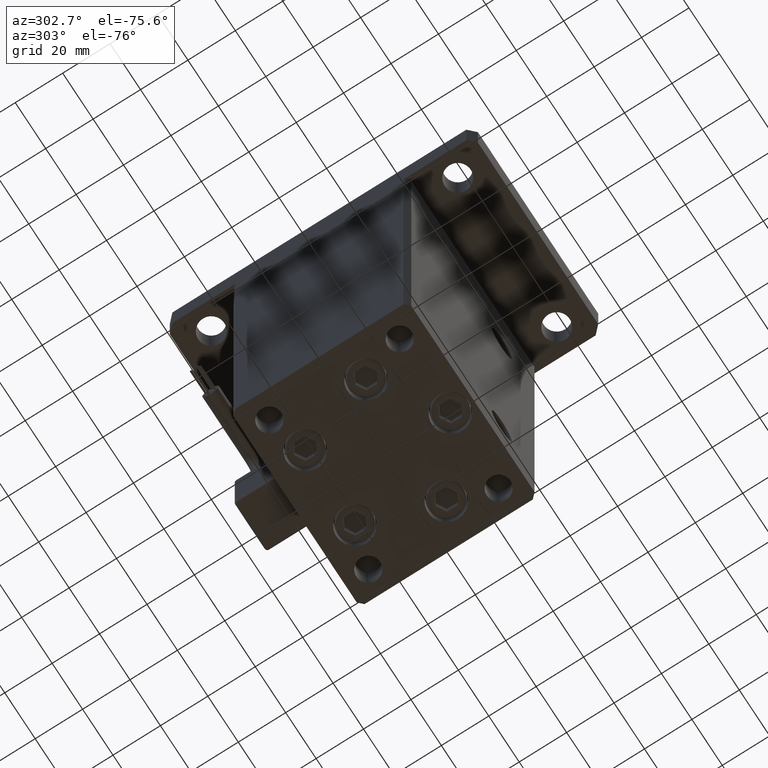
[diagram: clean part render]
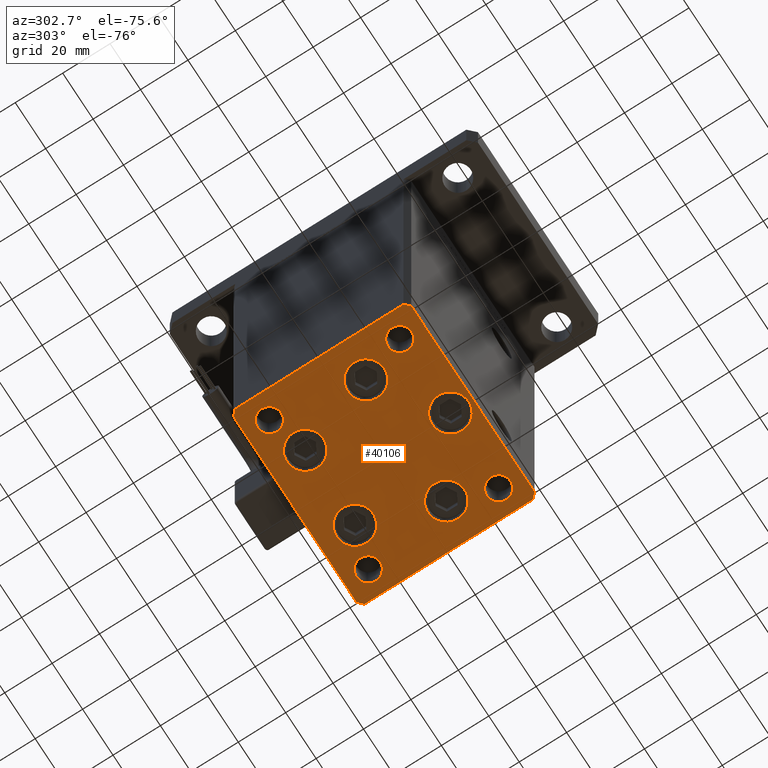
[diagram: same view with one face highlighted and labeled with its STEP entity id]
A machine part, auxiliary view. The second image highlights one B-rep face of the part: STEP entity #40106.
In plain terms, the highlighted planar face has unit normal (0, 0, -1).
Its self-contained STEP definition (entity closure, byte-faithful):
#190 = CARTESIAN_POINT ( 'NONE',  ( -42.50000000000000000, -35.50000000000000711, 0.000000000000000000 ) ) ;
#523 = VERTEX_POINT ( 'NONE', #755 ) ;
#556 = CARTESIAN_POINT ( 'NONE',  ( 3.429011037612589276E-15, -28.00000000000000000, 0.000000000000000000 ) ) ;
#755 = CARTESIAN_POINT ( 'NONE',  ( -37.50000000000000711, -27.49999999999999645, 0.000000000000000000 ) ) ;
#1051 = AXIS2_PLACEMENT_3D ( 'NONE', #21051, #55551, #38402 ) ;
#1244 = AXIS2_PLACEMENT_3D ( 'NONE', #31341, #44461, #27627 ) ;
#1303 = ORIENTED_EDGE ( 'NONE', *, *, #6437, .T. ) ;
#1730 = ORIENTED_EDGE ( 'NONE', *, *, #2276, .T. ) ;
#1922 = EDGE_CURVE ( 'NONE', #32079, #53146, #19360, .T. ) ;
#2072 = VERTEX_POINT ( 'NONE', #54143 ) ;
#2276 = EDGE_CURVE ( 'NONE', #34103, #2072, #3885, .T. ) ;
#2718 = CARTESIAN_POINT ( 'NONE',  ( -16.32291334290543006, 22.74999999999999645, 0.000000000000000000 ) ) ;
#2997 = DIRECTION ( 'NONE',  ( -0.000000000000000000, 0.000000000000000000, 1.000000000000000000 ) ) ;
#3047 = CARTESIAN_POINT ( 'NONE',  ( 32.50000000000000000, -27.49999999999999645, 0.000000000000000000 ) ) ;
#3281 = FACE_BOUND ( 'NONE', #40045, .T. ) ;
#3399 = DIRECTION ( 'NONE',  ( 0.000000000000000000, -0.000000000000000000, -1.000000000000000000 ) ) ;
#3885 = CIRCLE ( 'NONE', #46665, 7.750000000000000000 ) ;
#3964 = VECTOR ( 'NONE', #56253, 1000.000000000000000 ) ;
#4137 = DIRECTION ( 'NONE',  ( 1.000000000000000000, 0.000000000000000000, 0.000000000000000000 ) ) ;
#4348 = CIRCLE ( 'NONE', #32550, 4.999999999999997335 ) ;
#4424 = CARTESIAN_POINT ( 'NONE',  ( 26.39865316429776954, -9.333333333333330373, 0.000000000000000000 ) ) ;
#4483 = VERTEX_POINT ( 'NONE', #34559 ) ;
#4522 = DIRECTION ( 'NONE',  ( 1.000000000000000000, 0.000000000000000000, 0.000000000000000000 ) ) ;
#4916 = AXIS2_PLACEMENT_3D ( 'NONE', #55445, #6701, #7268 ) ;
#5504 = CIRCLE ( 'NONE', #46488, 4.999999999999997335 ) ;
#5640 = DIRECTION ( 'NONE',  ( 0.000000000000000000, -0.000000000000000000, -1.000000000000000000 ) ) ;
#5955 = DIRECTION ( 'NONE',  ( 0.7071067811865474617, 0.7071067811865474617, 0.000000000000000000 ) ) ;
#6284 = CARTESIAN_POINT ( 'NONE',  ( -40.50000000000000711, 37.49999999999997868, 0.000000000000000000 ) ) ;
#6437 = EDGE_CURVE ( 'NONE', #51721, #19822, #45192, .T. ) ;
#6701 = DIRECTION ( 'NONE',  ( 0.000000000000000000, -0.000000000000000000, -1.000000000000000000 ) ) ;
#6921 = AXIS2_PLACEMENT_3D ( 'NONE', #16507, #3399, #51286 ) ;
#7113 = ORIENTED_EDGE ( 'NONE', *, *, #47487, .T. ) ;
#7268 = DIRECTION ( 'NONE',  ( 1.000000000000000000, 0.000000000000000000, 0.000000000000000000 ) ) ;
#7584 = CARTESIAN_POINT ( 'NONE',  ( 37.50000000000000000, 27.49999999999999645, 0.000000000000000000 ) ) ;
#7600 = CARTESIAN_POINT ( 'NONE',  ( 32.50000000000000000, -27.49999999999999645, 0.000000000000000000 ) ) ;
#7665 = CARTESIAN_POINT ( 'NONE',  ( -32.50000000000000000, 27.50000000000000355, 0.000000000000000000 ) ) ;
#7943 = DIRECTION ( 'NONE',  ( 1.000000000000000000, 0.000000000000000000, 0.000000000000000000 ) ) ;
#7961 = CARTESIAN_POINT ( 'NONE',  ( 42.49999999999992895, 35.50000000000000000, 0.000000000000000000 ) ) ;
#8569 = EDGE_CURVE ( 'NONE', #54221, #39507, #37641, .T. ) ;
#9166 = EDGE_CURVE ( 'NONE', #47627, #22490, #43690, .T. ) ;
#9227 = CIRCLE ( 'NONE', #12845, 5.000000000000000888 ) ;
#9655 = ORIENTED_EDGE ( 'NONE', *, *, #50332, .T. ) ;
#9757 = EDGE_CURVE ( 'NONE', #41611, #523, #34063, .T. ) ;
#9963 = EDGE_CURVE ( 'NONE', #29489, #22587, #45894, .T. ) ;
#10400 = VECTOR ( 'NONE', #28366, 1000.000000000000000 ) ;
#10504 = DIRECTION ( 'NONE',  ( -1.172770800660376741E-15, 1.000000000000000000, 0.000000000000000000 ) ) ;
#10688 = ORIENTED_EDGE ( 'NONE', *, *, #33497, .F. ) ;
#11514 = ORIENTED_EDGE ( 'NONE', *, *, #32123, .T. ) ;
#12387 = FACE_BOUND ( 'NONE', #29664, .T. ) ;
#12444 = DIRECTION ( 'NONE',  ( 0.000000000000000000, -0.000000000000000000, -1.000000000000000000 ) ) ;
#12845 = AXIS2_PLACEMENT_3D ( 'NONE', #7665, #42985, #7943 ) ;
#13663 = ORIENTED_EDGE ( 'NONE', *, *, #44723, .T. ) ;
#13898 = EDGE_CURVE ( 'NONE', #4483, #36853, #16903, .T. ) ;
#13907 = CARTESIAN_POINT ( 'NONE',  ( 3.429011037612589276E-15, -28.00000000000000000, 0.000000000000000000 ) ) ;
#14202 = CIRCLE ( 'NONE', #6921, 7.750000000000003553 ) ;
#14213 = CARTESIAN_POINT ( 'NONE',  ( 26.39865316429776954, -9.333333333333330373, 0.000000000000000000 ) ) ;
#14427 = DIRECTION ( 'NONE',  ( -0.000000000000000000, 0.000000000000000000, 1.000000000000000000 ) ) ;
#14441 = CARTESIAN_POINT ( 'NONE',  ( -40.49999999999999289, -37.50000000000002132, 0.000000000000000000 ) ) ;
#14813 = CARTESIAN_POINT ( 'NONE',  ( 27.50000000000000355, 27.49999999999999645, 0.000000000000000000 ) ) ;
#15300 = DIRECTION ( 'NONE',  ( 1.000000000000000000, 0.000000000000000000, 0.000000000000000000 ) ) ;
#15473 = ORIENTED_EDGE ( 'NONE', *, *, #39562, .T. ) ;
#15632 = CIRCLE ( 'NONE', #1051, 7.750000000000000000 ) ;
#15964 = EDGE_LOOP ( 'NONE', ( #22837, #23187 ) ) ;
#15975 = ORIENTED_EDGE ( 'NONE', *, *, #37500, .T. ) ;
#16325 = CARTESIAN_POINT ( 'NONE',  ( 8.572913342905422951, 22.75000000000000000, 0.000000000000000000 ) ) ;
#16507 = CARTESIAN_POINT ( 'NONE',  ( 16.32291334290542295, 22.75000000000000000, 0.000000000000000000 ) ) ;
#16903 = CIRCLE ( 'NONE', #46060, 7.750000000000000000 ) ;
#17532 = AXIS2_PLACEMENT_3D ( 'NONE', #38431, #5640, #4522 ) ;
#17592 = VERTEX_POINT ( 'NONE', #52356 ) ;
#18235 = DIRECTION ( 'NONE',  ( 0.000000000000000000, -0.000000000000000000, -1.000000000000000000 ) ) ;
#19360 = CIRCLE ( 'NONE', #42980, 7.750000000000000000 ) ;
#19501 = AXIS2_PLACEMENT_3D ( 'NONE', #2718, #37468, #41464 ) ;
#19822 = VERTEX_POINT ( 'NONE', #45044 ) ;
#20116 = FACE_BOUND ( 'NONE', #45277, .T. ) ;
#20147 = DIRECTION ( 'NONE',  ( -0.000000000000000000, 0.000000000000000000, 1.000000000000000000 ) ) ;
#20162 = DIRECTION ( 'NONE',  ( 0.000000000000000000, -0.000000000000000000, -1.000000000000000000 ) ) ;
#20401 = CIRCLE ( 'NONE', #19501, 7.750000000000000000 ) ;
#20444 = DIRECTION ( 'NONE',  ( 1.000000000000000000, 0.000000000000000000, 0.000000000000000000 ) ) ;
#20849 = DIRECTION ( 'NONE',  ( 9.773090005503140331E-17, -1.000000000000000000, 0.000000000000000000 ) ) ;
#21051 = CARTESIAN_POINT ( 'NONE',  ( -26.39865316429776954, -9.333333333333337478, 0.000000000000000000 ) ) ;
#21119 = CARTESIAN_POINT ( 'NONE',  ( -42.50000000000000711, 35.49999999999997158, 0.000000000000000000 ) ) ;
#21293 = CIRCLE ( 'NONE', #24913, 7.750000000000000000 ) ;
#21345 = DIRECTION ( 'NONE',  ( 0.000000000000000000, -0.000000000000000000, -1.000000000000000000 ) ) ;
#21557 = CARTESIAN_POINT ( 'NONE',  ( -40.49999999999999289, -37.50000000000002132, 0.000000000000000000 ) ) ;
#21968 = AXIS2_PLACEMENT_3D ( 'NONE', #46024, #41737, #50301 ) ;
#22490 = VERTEX_POINT ( 'NONE', #21557 ) ;
#22587 = VERTEX_POINT ( 'NONE', #54528 ) ;
#22772 = DIRECTION ( 'NONE',  ( 0.000000000000000000, -0.000000000000000000, -1.000000000000000000 ) ) ;
#22837 = ORIENTED_EDGE ( 'NONE', *, *, #44695, .T. ) ;
#23073 = CARTESIAN_POINT ( 'NONE',  ( 40.50000000000000000, -37.50000000000000711, 0.000000000000000000 ) ) ;
#23115 = LINE ( 'NONE', #6284, #35363 ) ;
#23187 = ORIENTED_EDGE ( 'NONE', *, *, #35145, .T. ) ;
#23322 = EDGE_LOOP ( 'NONE', ( #52766, #34047 ) ) ;
#23674 = DIRECTION ( 'NONE',  ( -0.7071067811865463515, -0.7071067811865487940, 0.000000000000000000 ) ) ;
#24135 = CARTESIAN_POINT ( 'NONE',  ( -16.32291334290543006, 22.74999999999999645, 0.000000000000000000 ) ) ;
#24402 = VERTEX_POINT ( 'NONE', #16325 ) ;
#24907 = CIRCLE ( 'NONE', #46885, 4.999999999999997335 ) ;
#24913 = AXIS2_PLACEMENT_3D ( 'NONE', #14213, #22772, #35022 ) ;
#25417 = EDGE_LOOP ( 'NONE', ( #31723, #15473, #11514, #7113, #9655, #1303, #29556, #40360 ) ) ;
#25611 = CARTESIAN_POINT ( 'NONE',  ( 40.49999999999991473, 37.50000000000000711, 0.000000000000000000 ) ) ;
#25616 = ORIENTED_EDGE ( 'NONE', *, *, #29426, .T. ) ;
#25730 = CARTESIAN_POINT ( 'NONE',  ( -42.50000000000000000, -35.50000000000000711, 0.000000000000000000 ) ) ;
#25870 = EDGE_CURVE ( 'NONE', #19822, #42367, #23115, .T. ) ;
#26797 = AXIS2_PLACEMENT_3D ( 'NONE', #7600, #12444, #29000 ) ;
#26970 = CARTESIAN_POINT ( 'NONE',  ( 32.50000000000000000, 27.49999999999999645, 0.000000000000000000 ) ) ;
#27024 = DIRECTION ( 'NONE',  ( 1.000000000000000000, 0.000000000000000000, 0.000000000000000000 ) ) ;
#27627 = DIRECTION ( 'NONE',  ( 1.000000000000000000, 0.000000000000000000, 0.000000000000000000 ) ) ;
#28366 = DIRECTION ( 'NONE',  ( -1.000000000000000000, -3.426614273534436165E-16, 0.000000000000000000 ) ) ;
#28516 = EDGE_LOOP ( 'NONE', ( #49891, #39128 ) ) ;
#28882 = CARTESIAN_POINT ( 'NONE',  ( -34.14865316429776954, -9.333333333333337478, 0.000000000000000000 ) ) ;
#29000 = DIRECTION ( 'NONE',  ( 1.000000000000000000, 0.000000000000000000, 0.000000000000000000 ) ) ;
#29147 = VERTEX_POINT ( 'NONE', #7584 ) ;
#29426 = EDGE_CURVE ( 'NONE', #24402, #29653, #47435, .T. ) ;
#29489 = VERTEX_POINT ( 'NONE', #38559 ) ;
#29556 = ORIENTED_EDGE ( 'NONE', *, *, #25870, .T. ) ;
#29583 = VECTOR ( 'NONE', #10504, 1000.000000000000000 ) ;
#29653 = VERTEX_POINT ( 'NONE', #45319 ) ;
#29664 = EDGE_LOOP ( 'NONE', ( #37434, #48589 ) ) ;
#29719 = EDGE_CURVE ( 'NONE', #39507, #54221, #9227, .T. ) ;
#30635 = DIRECTION ( 'NONE',  ( 0.000000000000000000, -0.000000000000000000, -1.000000000000000000 ) ) ;
#30865 = CARTESIAN_POINT ( 'NONE',  ( 34.14865316429776954, -9.333333333333328596, 0.000000000000000000 ) ) ;
#31341 = CARTESIAN_POINT ( 'NONE',  ( -32.50000000000000000, 27.50000000000000355, 0.000000000000000000 ) ) ;
#31406 = CARTESIAN_POINT ( 'NONE',  ( -42.50000000000000711, 35.49999999999997158, 0.000000000000000000 ) ) ;
#31534 = CARTESIAN_POINT ( 'NONE',  ( -27.50000000000000000, 27.50000000000000355, 0.000000000000000000 ) ) ;
#31723 = ORIENTED_EDGE ( 'NONE', *, *, #9166, .T. ) ;
#32079 = VERTEX_POINT ( 'NONE', #56164 ) ;
#32105 = CARTESIAN_POINT ( 'NONE',  ( -18.64865316429776954, -9.333333333333335702, 0.000000000000000000 ) ) ;
#32123 = EDGE_CURVE ( 'NONE', #48269, #17592, #53577, .T. ) ;
#32250 = CARTESIAN_POINT ( 'NONE',  ( -27.50000000000000000, -27.49999999999999645, 0.000000000000000000 ) ) ;
#32550 = AXIS2_PLACEMENT_3D ( 'NONE', #26970, #14427, #44632 ) ;
#32937 = PLANE ( 'NONE',  #42150 ) ;
#33497 = EDGE_CURVE ( 'NONE', #29147, #35859, #5504, .T. ) ;
#33759 = FACE_BOUND ( 'NONE', #15964, .T. ) ;
#34035 = FACE_BOUND ( 'NONE', #52215, .T. ) ;
#34047 = ORIENTED_EDGE ( 'NONE', *, *, #8569, .F. ) ;
#34063 = CIRCLE ( 'NONE', #54115, 5.000000000000000888 ) ;
#34103 = VERTEX_POINT ( 'NONE', #51074 ) ;
#34164 = VECTOR ( 'NONE', #20849, 1000.000000000000000 ) ;
#34559 = CARTESIAN_POINT ( 'NONE',  ( 18.64865316429776954, -9.333333333333330373, 0.000000000000000000 ) ) ;
#35022 = DIRECTION ( 'NONE',  ( 1.000000000000000000, 0.000000000000000000, 0.000000000000000000 ) ) ;
#35145 = EDGE_CURVE ( 'NONE', #47719, #41369, #15632, .T. ) ;
#35363 = VECTOR ( 'NONE', #23674, 1000.000000000000000 ) ;
#35859 = VERTEX_POINT ( 'NONE', #14813 ) ;
#36853 = VERTEX_POINT ( 'NONE', #30865 ) ;
#37196 = CARTESIAN_POINT ( 'NONE',  ( 0.000000000000000000, 0.000000000000000000, 0.000000000000000000 ) ) ;
#37434 = ORIENTED_EDGE ( 'NONE', *, *, #43592, .T. ) ;
#37468 = DIRECTION ( 'NONE',  ( 0.000000000000000000, -0.000000000000000000, -1.000000000000000000 ) ) ;
#37500 = EDGE_CURVE ( 'NONE', #53146, #32079, #42998, .T. ) ;
#37641 = CIRCLE ( 'NONE', #1244, 5.000000000000000888 ) ;
#38327 = EDGE_CURVE ( 'NONE', #523, #41611, #39371, .T. ) ;
#38402 = DIRECTION ( 'NONE',  ( 1.000000000000000000, 0.000000000000000000, 0.000000000000000000 ) ) ;
#38431 = CARTESIAN_POINT ( 'NONE',  ( -32.50000000000000000, -27.49999999999999645, 0.000000000000000000 ) ) ;
#38559 = CARTESIAN_POINT ( 'NONE',  ( 27.50000000000000355, -27.49999999999999645, 0.000000000000000000 ) ) ;
#38960 = ORIENTED_EDGE ( 'NONE', *, *, #54795, .F. ) ;
#39053 = EDGE_LOOP ( 'NONE', ( #13663, #1730 ) ) ;
#39128 = ORIENTED_EDGE ( 'NONE', *, *, #40536, .T. ) ;
#39371 = CIRCLE ( 'NONE', #17532, 5.000000000000000888 ) ;
#39507 = VERTEX_POINT ( 'NONE', #31534 ) ;
#39562 = EDGE_CURVE ( 'NONE', #22490, #48269, #53491, .T. ) ;
#39840 = DIRECTION ( 'NONE',  ( 0.000000000000000000, -0.000000000000000000, -1.000000000000000000 ) ) ;
#40045 = EDGE_LOOP ( 'NONE', ( #25616, #47314 ) ) ;
#40106 = ADVANCED_FACE ( 'NONE', ( #46887, #3281, #41763, #42037, #33759, #34035, #12387, #42322, #50620, #20116 ), #32937, .T. ) ;
#40360 = ORIENTED_EDGE ( 'NONE', *, *, #49103, .T. ) ;
#40536 = EDGE_CURVE ( 'NONE', #36853, #4483, #21293, .T. ) ;
#40830 = EDGE_LOOP ( 'NONE', ( #15975, #54248 ) ) ;
#40980 = LINE ( 'NONE', #49560, #29583 ) ;
#41196 = ORIENTED_EDGE ( 'NONE', *, *, #9757, .T. ) ;
#41369 = VERTEX_POINT ( 'NONE', #28882 ) ;
#41464 = DIRECTION ( 'NONE',  ( 1.000000000000000000, 0.000000000000000000, 0.000000000000000000 ) ) ;
#41611 = VERTEX_POINT ( 'NONE', #32250 ) ;
#41737 = DIRECTION ( 'NONE',  ( 0.000000000000000000, -0.000000000000000000, -1.000000000000000000 ) ) ;
#41763 = FACE_BOUND ( 'NONE', #28516, .T. ) ;
#42037 = FACE_BOUND ( 'NONE', #40830, .T. ) ;
#42150 = AXIS2_PLACEMENT_3D ( 'NONE', #37196, #2997, #51449 ) ;
#42322 = FACE_BOUND ( 'NONE', #23322, .T. ) ;
#42367 = VERTEX_POINT ( 'NONE', #31406 ) ;
#42980 = AXIS2_PLACEMENT_3D ( 'NONE', #556, #18235, #43606 ) ;
#42985 = DIRECTION ( 'NONE',  ( -0.000000000000000000, 0.000000000000000000, 1.000000000000000000 ) ) ;
#42998 = CIRCLE ( 'NONE', #45743, 7.750000000000000000 ) ;
#43275 = DIRECTION ( 'NONE',  ( -0.7071067811865474617, 0.7071067811865474617, 0.000000000000000000 ) ) ;
#43552 = DIRECTION ( 'NONE',  ( 1.000000000000000000, 0.000000000000000000, 0.000000000000000000 ) ) ;
#43592 = EDGE_CURVE ( 'NONE', #22587, #29489, #24907, .T. ) ;
#43606 = DIRECTION ( 'NONE',  ( 1.000000000000000000, 0.000000000000000000, 0.000000000000000000 ) ) ;
#43690 = LINE ( 'NONE', #25730, #3964 ) ;
#44072 = CIRCLE ( 'NONE', #4916, 7.750000000000000000 ) ;
#44137 = LINE ( 'NONE', #48129, #46075 ) ;
#44461 = DIRECTION ( 'NONE',  ( -0.000000000000000000, 0.000000000000000000, 1.000000000000000000 ) ) ;
#44632 = DIRECTION ( 'NONE',  ( 1.000000000000000000, 0.000000000000000000, 0.000000000000000000 ) ) ;
#44666 = DIRECTION ( 'NONE',  ( 0.000000000000000000, -0.000000000000000000, -1.000000000000000000 ) ) ;
#44695 = EDGE_CURVE ( 'NONE', #41369, #47719, #44072, .T. ) ;
#44723 = EDGE_CURVE ( 'NONE', #2072, #34103, #20401, .T. ) ;
#45044 = CARTESIAN_POINT ( 'NONE',  ( -40.50000000000000711, 37.49999999999997868, 0.000000000000000000 ) ) ;
#45192 = LINE ( 'NONE', #45752, #10400 ) ;
#45277 = EDGE_LOOP ( 'NONE', ( #41196, #48566 ) ) ;
#45319 = CARTESIAN_POINT ( 'NONE',  ( 24.07291334290542650, 22.75000000000000000, 0.000000000000000000 ) ) ;
#45743 = AXIS2_PLACEMENT_3D ( 'NONE', #13907, #39840, #27024 ) ;
#45752 = CARTESIAN_POINT ( 'NONE',  ( 40.49999999999991473, 37.50000000000000711, 0.000000000000000000 ) ) ;
#45894 = CIRCLE ( 'NONE', #26797, 4.999999999999997335 ) ;
#46024 = CARTESIAN_POINT ( 'NONE',  ( 16.32291334290542295, 22.75000000000000000, 0.000000000000000000 ) ) ;
#46060 = AXIS2_PLACEMENT_3D ( 'NONE', #4424, #30635, #4137 ) ;
#46075 = VECTOR ( 'NONE', #43275, 1000.000000000000114 ) ;
#46086 = CARTESIAN_POINT ( 'NONE',  ( 32.50000000000000000, 27.49999999999999645, 0.000000000000000000 ) ) ;
#46333 = CARTESIAN_POINT ( 'NONE',  ( -7.749999999999996447, -28.00000000000000000, 0.000000000000000000 ) ) ;
#46488 = AXIS2_PLACEMENT_3D ( 'NONE', #46086, #20147, #51201 ) ;
#46559 = VERTEX_POINT ( 'NONE', #7961 ) ;
#46665 = AXIS2_PLACEMENT_3D ( 'NONE', #24135, #44666, #15300 ) ;
#46885 = AXIS2_PLACEMENT_3D ( 'NONE', #3047, #20162, #20444 ) ;
#46887 = FACE_BOUND ( 'NONE', #39053, .T. ) ;
#47148 = CARTESIAN_POINT ( 'NONE',  ( -37.50000000000000711, 27.50000000000000355, 0.000000000000000000 ) ) ;
#47314 = ORIENTED_EDGE ( 'NONE', *, *, #50200, .T. ) ;
#47435 = CIRCLE ( 'NONE', #21968, 7.750000000000003553 ) ;
#47487 = EDGE_CURVE ( 'NONE', #17592, #46559, #40980, .T. ) ;
#47627 = VERTEX_POINT ( 'NONE', #190 ) ;
#47719 = VERTEX_POINT ( 'NONE', #32105 ) ;
#47839 = CARTESIAN_POINT ( 'NONE',  ( -32.50000000000000000, -27.49999999999999645, 0.000000000000000000 ) ) ;
#48129 = CARTESIAN_POINT ( 'NONE',  ( 42.49999999999992895, 35.50000000000000000, 0.000000000000000000 ) ) ;
#48269 = VERTEX_POINT ( 'NONE', #23073 ) ;
#48551 = VECTOR ( 'NONE', #49207, 1000.000000000000000 ) ;
#48566 = ORIENTED_EDGE ( 'NONE', *, *, #38327, .T. ) ;
#48589 = ORIENTED_EDGE ( 'NONE', *, *, #9963, .T. ) ;
#49103 = EDGE_CURVE ( 'NONE', #42367, #47627, #50792, .T. ) ;
#49207 = DIRECTION ( 'NONE',  ( 1.000000000000000000, 1.713307136767217096E-16, 0.000000000000000000 ) ) ;
#49560 = CARTESIAN_POINT ( 'NONE',  ( 42.50000000000000711, -35.50000000000000000, 0.000000000000000000 ) ) ;
#49891 = ORIENTED_EDGE ( 'NONE', *, *, #13898, .T. ) ;
#50200 = EDGE_CURVE ( 'NONE', #29653, #24402, #14202, .T. ) ;
#50301 = DIRECTION ( 'NONE',  ( 1.000000000000000000, 0.000000000000000000, 0.000000000000000000 ) ) ;
#50332 = EDGE_CURVE ( 'NONE', #46559, #51721, #44137, .T. ) ;
#50620 = FACE_OUTER_BOUND ( 'NONE', #25417, .T. ) ;
#50792 = LINE ( 'NONE', #21119, #34164 ) ;
#51074 = CARTESIAN_POINT ( 'NONE',  ( -8.572913342905431833, 22.74999999999999645, 0.000000000000000000 ) ) ;
#51201 = DIRECTION ( 'NONE',  ( 1.000000000000000000, 0.000000000000000000, 0.000000000000000000 ) ) ;
#51286 = DIRECTION ( 'NONE',  ( 1.000000000000000000, 0.000000000000000000, 0.000000000000000000 ) ) ;
#51449 = DIRECTION ( 'NONE',  ( 1.000000000000000000, 0.000000000000000000, 0.000000000000000000 ) ) ;
#51721 = VERTEX_POINT ( 'NONE', #25611 ) ;
#52215 = EDGE_LOOP ( 'NONE', ( #10688, #38960 ) ) ;
#52356 = CARTESIAN_POINT ( 'NONE',  ( 42.50000000000000711, -35.50000000000000000, 0.000000000000000000 ) ) ;
#52766 = ORIENTED_EDGE ( 'NONE', *, *, #29719, .F. ) ;
#52834 = VECTOR ( 'NONE', #5955, 1000.000000000000114 ) ;
#53007 = CARTESIAN_POINT ( 'NONE',  ( 40.50000000000000000, -37.50000000000000711, 0.000000000000000000 ) ) ;
#53146 = VERTEX_POINT ( 'NONE', #46333 ) ;
#53491 = LINE ( 'NONE', #14441, #48551 ) ;
#53577 = LINE ( 'NONE', #53007, #52834 ) ;
#54115 = AXIS2_PLACEMENT_3D ( 'NONE', #47839, #21345, #43552 ) ;
#54143 = CARTESIAN_POINT ( 'NONE',  ( -24.07291334290543006, 22.74999999999999645, 0.000000000000000000 ) ) ;
#54221 = VERTEX_POINT ( 'NONE', #47148 ) ;
#54248 = ORIENTED_EDGE ( 'NONE', *, *, #1922, .T. ) ;
#54528 = CARTESIAN_POINT ( 'NONE',  ( 37.50000000000000000, -27.49999999999999645, 0.000000000000000000 ) ) ;
#54795 = EDGE_CURVE ( 'NONE', #35859, #29147, #4348, .T. ) ;
#55445 = CARTESIAN_POINT ( 'NONE',  ( -26.39865316429776954, -9.333333333333337478, 0.000000000000000000 ) ) ;
#55551 = DIRECTION ( 'NONE',  ( 0.000000000000000000, -0.000000000000000000, -1.000000000000000000 ) ) ;
#56164 = CARTESIAN_POINT ( 'NONE',  ( 7.750000000000003553, -28.00000000000000000, 0.000000000000000000 ) ) ;
#56253 = DIRECTION ( 'NONE',  ( 0.7071067811865463515, -0.7071067811865487940, 0.000000000000000000 ) ) ;